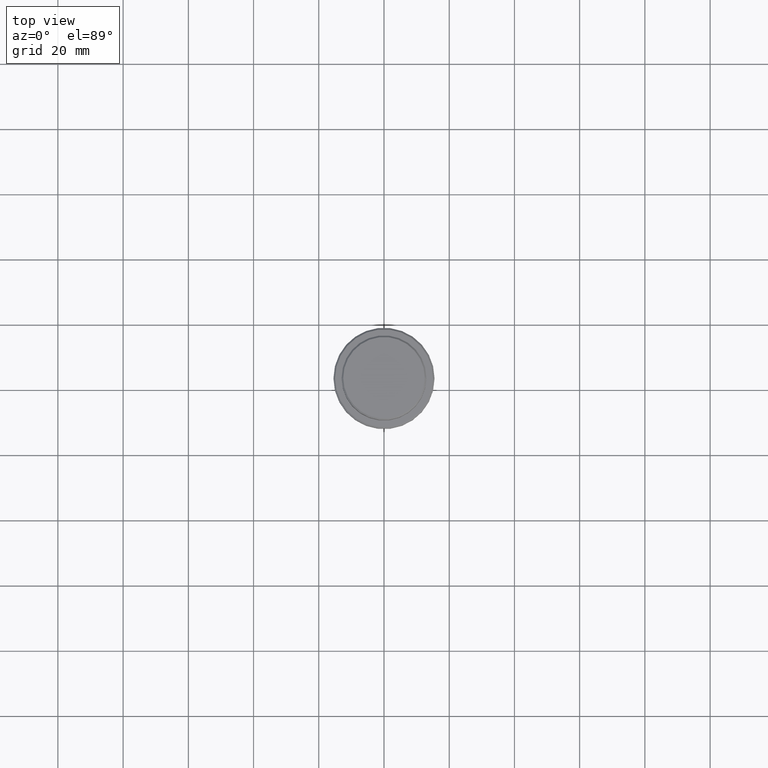
[diagram: clean part render]
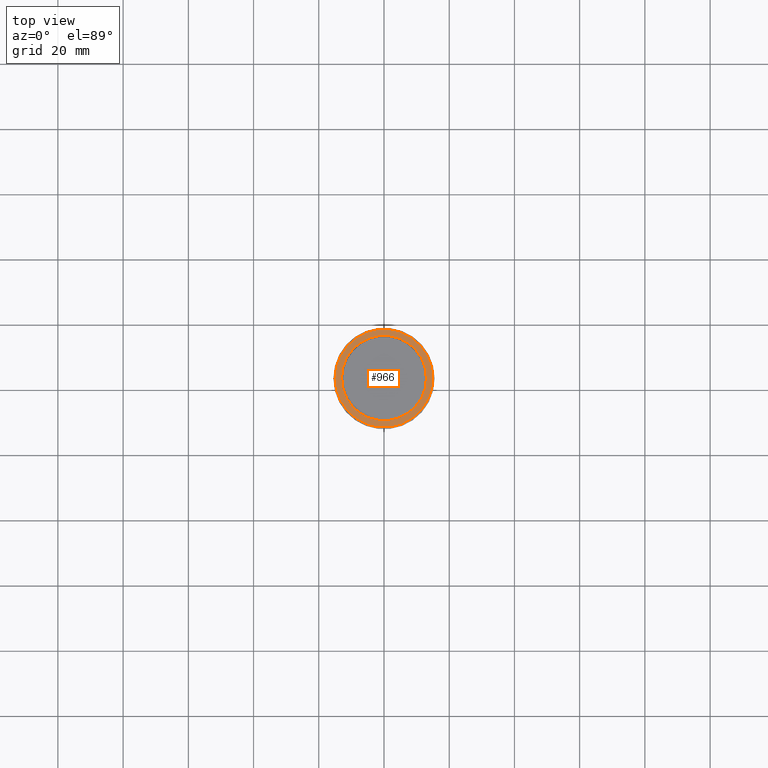
[diagram: same view with one face highlighted and labeled with its STEP entity id]
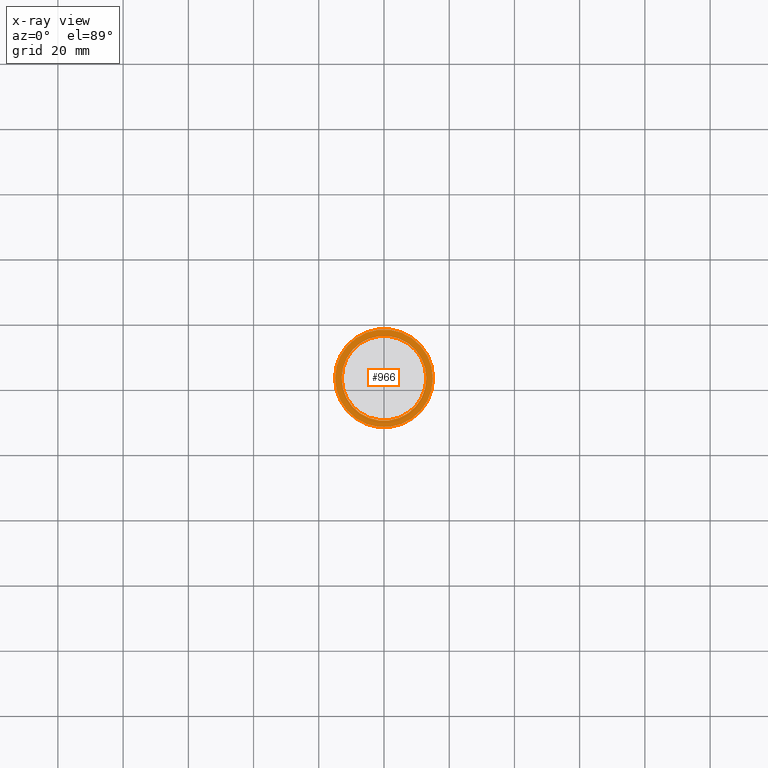
[diagram: x-ray of the same camera — body ghosted, the highlighted face saturated]
A machine part, top view. The second image highlights one B-rep face of the part: STEP entity #966.
The next image is the same camera in x-ray: the body ghosted, the highlighted face saturated — about 0% of this face is hidden behind the body in this view.
In plain terms, the highlighted planar face has unit normal (0, -0, 1).
Its self-contained STEP definition (entity closure, byte-faithful):
#45 = ORIENTED_EDGE ( 'NONE', *, *, #632, .T. ) ;
#57 = DIRECTION ( 'NONE',  ( 0.000000000000000000, 0.000000000000000000, -1.000000000000000000 ) ) ;
#73 = CARTESIAN_POINT ( 'NONE',  ( 0.000000000000000000, 0.000000000000000000, -9.000000000000000000 ) ) ;
#115 = VERTEX_POINT ( 'NONE', #812 ) ;
#119 = AXIS2_PLACEMENT_3D ( 'NONE', #1314, #567, #559 ) ;
#151 = DIRECTION ( 'NONE',  ( 0.000000000000000000, -0.000000000000000000, 1.000000000000000000 ) ) ;
#155 = CARTESIAN_POINT ( 'NONE',  ( 14.99999999999998579, 1.867586368699712587E-15, -9.000000000000000000 ) ) ;
#302 = DIRECTION ( 'NONE',  ( 1.000000000000000000, 0.000000000000000000, 0.000000000000000000 ) ) ;
#303 = ORIENTED_EDGE ( 'NONE', *, *, #330, .T. ) ;
#330 = EDGE_CURVE ( 'NONE', #392, #942, #1366, .T. ) ;
#373 = FACE_OUTER_BOUND ( 'NONE', #879, .T. ) ;
#392 = VERTEX_POINT ( 'NONE', #981 ) ;
#395 = DIRECTION ( 'NONE',  ( 1.000000000000000000, 0.000000000000000000, 0.000000000000000000 ) ) ;
#500 = AXIS2_PLACEMENT_3D ( 'NONE', #965, #1080, #1207 ) ;
#525 = DIRECTION ( 'NONE',  ( 0.000000000000000000, 0.000000000000000000, -1.000000000000000000 ) ) ;
#548 = AXIS2_PLACEMENT_3D ( 'NONE', #799, #57, #1171 ) ;
#559 = DIRECTION ( 'NONE',  ( 1.000000000000000000, 0.000000000000000000, 0.000000000000000000 ) ) ;
#567 = DIRECTION ( 'NONE',  ( -0.000000000000000000, -0.000000000000000000, 1.000000000000000000 ) ) ;
#617 = VERTEX_POINT ( 'NONE', #1096 ) ;
#632 = EDGE_CURVE ( 'NONE', #942, #392, #1126, .T. ) ;
#641 = ORIENTED_EDGE ( 'NONE', *, *, #1124, .T. ) ;
#714 = PLANE ( 'NONE',  #1317 ) ;
#790 = EDGE_LOOP ( 'NONE', ( #641, #871 ) ) ;
#791 = CIRCLE ( 'NONE', #1159, 12.99999999999999467 ) ;
#799 = CARTESIAN_POINT ( 'NONE',  ( 0.000000000000000000, 0.000000000000000000, -9.000000000000000000 ) ) ;
#812 = CARTESIAN_POINT ( 'NONE',  ( 12.99999999999999467, 0.000000000000000000, -9.000000000000000000 ) ) ;
#819 = FACE_BOUND ( 'NONE', #790, .T. ) ;
#843 = EDGE_CURVE ( 'NONE', #617, #115, #1413, .T. ) ;
#871 = ORIENTED_EDGE ( 'NONE', *, *, #843, .T. ) ;
#879 = EDGE_LOOP ( 'NONE', ( #303, #45 ) ) ;
#942 = VERTEX_POINT ( 'NONE', #155 ) ;
#965 = CARTESIAN_POINT ( 'NONE',  ( 0.000000000000000000, 0.000000000000000000, -9.000000000000000000 ) ) ;
#966 = ADVANCED_FACE ( 'NONE', ( #373, #819 ), #714, .T. ) ;
#981 = CARTESIAN_POINT ( 'NONE',  ( -14.99999999999998579, 0.000000000000000000, -9.000000000000000000 ) ) ;
#1080 = DIRECTION ( 'NONE',  ( -0.000000000000000000, -0.000000000000000000, 1.000000000000000000 ) ) ;
#1096 = CARTESIAN_POINT ( 'NONE',  ( -12.99999999999999467, 1.592040838891558504E-15, -9.000000000000000000 ) ) ;
#1124 = EDGE_CURVE ( 'NONE', #115, #617, #791, .T. ) ;
#1126 = CIRCLE ( 'NONE', #500, 14.99999999999998579 ) ;
#1154 = CARTESIAN_POINT ( 'NONE',  ( 0.000000000000000000, 12.49999999999999289, -9.000000000000000000 ) ) ;
#1159 = AXIS2_PLACEMENT_3D ( 'NONE', #73, #525, #302 ) ;
#1171 = DIRECTION ( 'NONE',  ( 1.000000000000000000, 0.000000000000000000, 0.000000000000000000 ) ) ;
#1207 = DIRECTION ( 'NONE',  ( 1.000000000000000000, 0.000000000000000000, 0.000000000000000000 ) ) ;
#1314 = CARTESIAN_POINT ( 'NONE',  ( 0.000000000000000000, 0.000000000000000000, -9.000000000000000000 ) ) ;
#1317 = AXIS2_PLACEMENT_3D ( 'NONE', #1154, #151, #395 ) ;
#1366 = CIRCLE ( 'NONE', #119, 14.99999999999998579 ) ;
#1413 = CIRCLE ( 'NONE', #548, 12.99999999999999467 ) ;